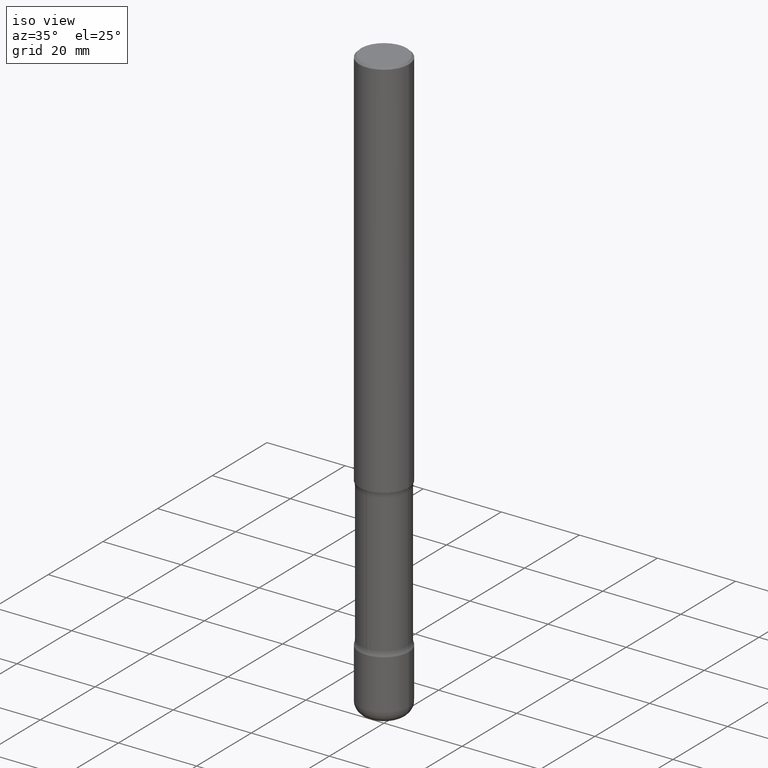
[diagram: clean part render]
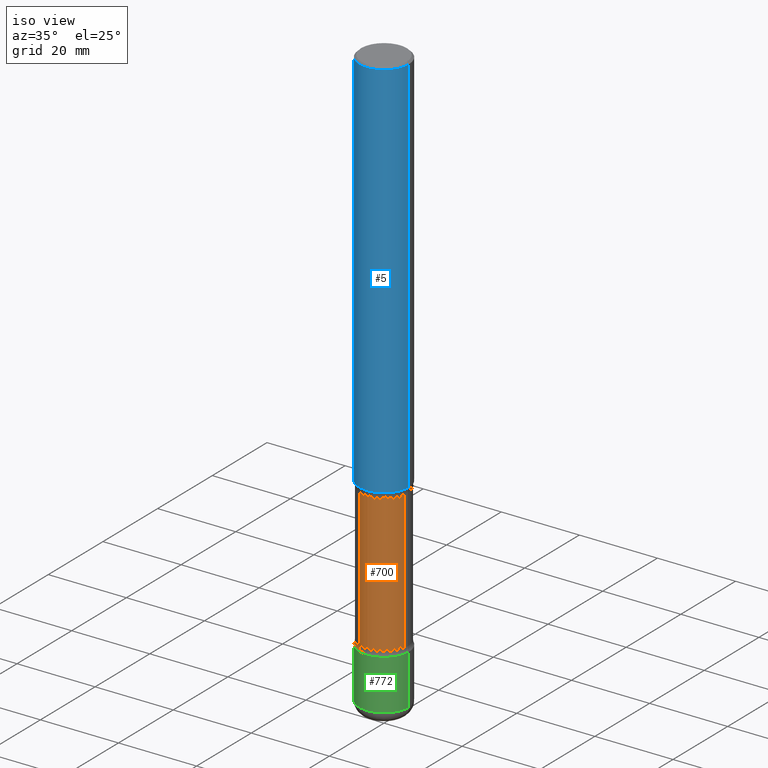
[diagram: same view with three faces highlighted in distinct colors, each labeled with its STEP entity id]
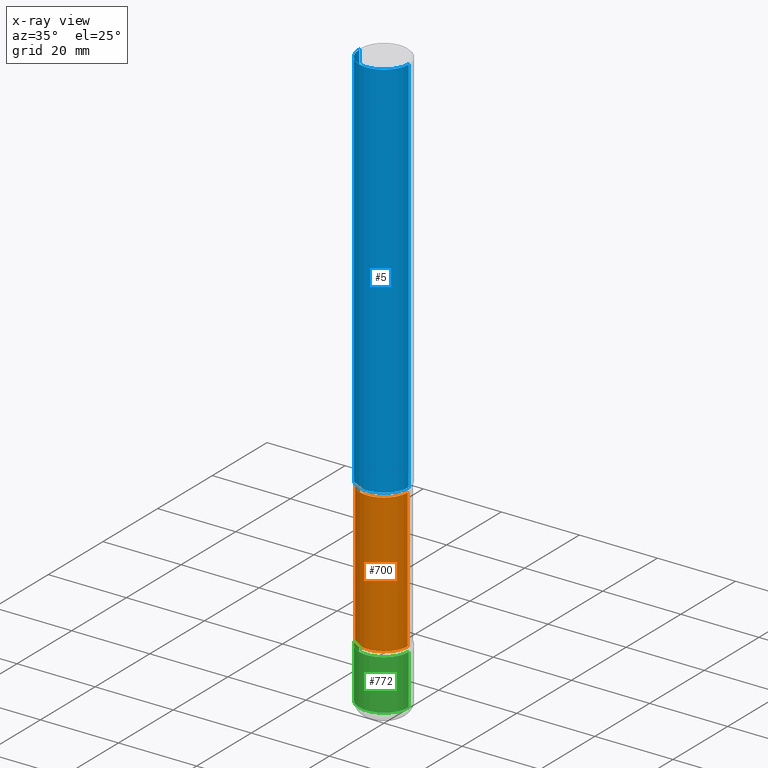
[diagram: x-ray of the same camera — body ghosted, the three highlighted faces saturated]
A machine part, iso view with three faces highlighted in distinct colors.
The next image is the same camera in x-ray (body ghosted, the three faces saturated) — at least one of them is partly hidden behind the body in this view.
Their STEP definitions:

[orange] entity #700 — the highlighted cylindrical surface (edge-blend (fillet) strip) has radius 6.096 mm, axis along (-0, 0, 1).
#52 = VECTOR ( 'NONE', #118, 39.37007874015748143 ) ;
#57 = CYLINDRICAL_SURFACE ( 'NONE', #723, 0.2400000000000001854 ) ;
#68 = VERTEX_POINT ( 'NONE', #100 ) ;
#80 = DIRECTION ( 'NONE',  ( 1.000000000000000000, -6.982962677686260400E-15, 0.000000000000000000 ) ) ;
#87 = DIRECTION ( 'NONE',  ( 1.000000000000000000, -6.982962677686266711E-15, 0.000000000000000000 ) ) ;
#92 = CIRCLE ( 'NONE', #788, 0.2400000000000000466 ) ;
#100 = CARTESIAN_POINT ( 'NONE',  ( 0.2400000000000002687, -2.027157628439431676E-14, -5.326010205144338094 ) ) ;
#111 = LINE ( 'NONE', #667, #156 ) ;
#118 = DIRECTION ( 'NONE',  ( -2.445468806185136877E-29, 3.491481338843145188E-15, 1.000000000000000000 ) ) ;
#125 = DIRECTION ( 'NONE',  ( 1.000000000000000000, -6.982962677686270655E-15, 0.000000000000000000 ) ) ;
#144 = ORIENTED_EDGE ( 'NONE', *, *, #784, .T. ) ;
#156 = VECTOR ( 'NONE', #804, 39.37007874015748143 ) ;
#172 = DIRECTION ( 'NONE',  ( -2.445468806185136597E-29, 3.491481338843145583E-15, 1.000000000000000000 ) ) ;
#199 = ORIENTED_EDGE ( 'NONE', *, *, #688, .T. ) ;
#211 = EDGE_LOOP ( 'NONE', ( #744, #144, #199, #554 ) ) ;
#238 = CARTESIAN_POINT ( 'NONE',  ( 0.2400000000000001854, -1.520540123066189720E-14, -3.875000000000000444 ) ) ;
#264 = VERTEX_POINT ( 'NONE', #566 ) ;
#276 = CARTESIAN_POINT ( 'NONE',  ( -0.2400000000000002687, -1.694035901640351371E-14, -5.326010205144338094 ) ) ;
#337 = VERTEX_POINT ( 'NONE', #767 ) ;
#390 = VERTEX_POINT ( 'NONE', #276 ) ;
#449 = CARTESIAN_POINT ( 'NONE',  ( 9.595994639108339414E-29, -1.370053714254949480E-14, -3.923989794855664126 ) ) ;
#537 = AXIS2_PLACEMENT_3D ( 'NONE', #577, #635, #80 ) ;
#554 = ORIENTED_EDGE ( 'NONE', *, *, #765, .F. ) ;
#557 = FACE_OUTER_BOUND ( 'NONE', #211, .T. ) ;
#560 = LINE ( 'NONE', #238, #52 ) ;
#566 = CARTESIAN_POINT ( 'NONE',  ( 0.2400000000000000466, -1.537644818519419975E-14, -3.923989794855664126 ) ) ;
#577 = CARTESIAN_POINT ( 'NONE',  ( 1.302459181810417859E-28, -1.859566524174961022E-14, -5.326010205144338094 ) ) ;
#620 = EDGE_CURVE ( 'NONE', #390, #337, #111, .T. ) ;
#635 = DIRECTION ( 'NONE',  ( -2.445468806185136597E-29, 3.491481338843145583E-15, 1.000000000000000000 ) ) ;
#667 = CARTESIAN_POINT ( 'NONE',  ( -0.2400000000000001854, -1.182418762219294870E-14, -3.875000000000000444 ) ) ;
#681 = CARTESIAN_POINT ( 'NONE',  ( 9.476191623967405434E-29, -1.352949018801719066E-14, -3.875000000000000444 ) ) ;
#688 = EDGE_CURVE ( 'NONE', #68, #264, #560, .T. ) ;
#692 = DIRECTION ( 'NONE',  ( -2.445468806185136597E-29, 3.491481338843145583E-15, 1.000000000000000000 ) ) ;
#700 = ADVANCED_FACE ( 'NONE', ( #557 ), #57, .T. ) ;
#723 = AXIS2_PLACEMENT_3D ( 'NONE', #681, #172, #125 ) ;
#744 = ORIENTED_EDGE ( 'NONE', *, *, #620, .F. ) ;
#765 = EDGE_CURVE ( 'NONE', #337, #264, #92, .T. ) ;
#767 = CARTESIAN_POINT ( 'NONE',  ( -0.2400000000000000744, -1.187418396267109888E-14, -3.923989794855664126 ) ) ;
#779 = CIRCLE ( 'NONE', #537, 0.2400000000000002687 ) ;
#784 = EDGE_CURVE ( 'NONE', #390, #68, #779, .T. ) ;
#788 = AXIS2_PLACEMENT_3D ( 'NONE', #449, #692, #87 ) ;
#804 = DIRECTION ( 'NONE',  ( -2.445468806185136877E-29, 3.491481338843145188E-15, 1.000000000000000000 ) ) ;

[blue] entity #5 — the highlighted cylindrical surface (edge-blend (fillet) strip) has radius 6.35 mm, axis along (-0, 0, 1).
#5 = ADVANCED_FACE ( 'NONE', ( #46 ), #289, .T. ) ;
#18 = VERTEX_POINT ( 'NONE', #353 ) ;
#25 = CIRCLE ( 'NONE', #297, 0.2500000000000000000 ) ;
#46 = FACE_OUTER_BOUND ( 'NONE', #206, .T. ) ;
#64 = ORIENTED_EDGE ( 'NONE', *, *, #440, .T. ) ;
#101 = CIRCLE ( 'NONE', #515, 0.2499999999999998057 ) ;
#135 = ORIENTED_EDGE ( 'NONE', *, *, #331, .T. ) ;
#137 = ORIENTED_EDGE ( 'NONE', *, *, #192, .F. ) ;
#168 = VECTOR ( 'NONE', #693, 39.37007874015748143 ) ;
#182 = CARTESIAN_POINT ( 'NONE',  ( 4.890937612370287172E-31, -6.982962677686310098E-17, -0.02000000000000005593 ) ) ;
#192 = EDGE_CURVE ( 'NONE', #18, #584, #101, .T. ) ;
#201 = LINE ( 'NONE', #451, #168 ) ;
#206 = EDGE_LOOP ( 'NONE', ( #430, #64, #135, #137 ) ) ;
#209 = EDGE_CURVE ( 'NONE', #325, #18, #674, .T. ) ;
#242 = AXIS2_PLACEMENT_3D ( 'NONE', #413, #533, #294 ) ;
#289 = CYLINDRICAL_SURFACE ( 'NONE', #242, 0.2499999999999998890 ) ;
#294 = DIRECTION ( 'NONE',  ( 1.000000000000000000, -6.982962677686266711E-15, 4.876176775795935793E-29 ) ) ;
#297 = AXIS2_PLACEMENT_3D ( 'NONE', #474, #407, #340 ) ;
#325 = VERTEX_POINT ( 'NONE', #455 ) ;
#331 = EDGE_CURVE ( 'NONE', #588, #584, #201, .T. ) ;
#340 = DIRECTION ( 'NONE',  ( 1.000000000000000000, -6.982962677686270655E-15, 0.000000000000000000 ) ) ;
#353 = CARTESIAN_POINT ( 'NONE',  ( -0.2499999999999998057, 1.675911042644702196E-15, -0.02000000000000005593 ) ) ;
#368 = DIRECTION ( 'NONE',  ( -2.445468806185136597E-29, 3.491481338843145583E-15, 1.000000000000000000 ) ) ;
#407 = DIRECTION ( 'NONE',  ( -2.445468806185136597E-29, 3.491481338843145583E-15, 1.000000000000000000 ) ) ;
#413 = CARTESIAN_POINT ( 'NONE',  ( 0.000000000000000000, 0.000000000000000000, 0.000000000000000000 ) ) ;
#430 = ORIENTED_EDGE ( 'NONE', *, *, #209, .F. ) ;
#440 = EDGE_CURVE ( 'NONE', #325, #588, #25, .T. ) ;
#451 = CARTESIAN_POINT ( 'NONE',  ( 0.2499999999999998890, -1.745740669421565889E-15, 1.219044193948983388E-29 ) ) ;
#455 = CARTESIAN_POINT ( 'NONE',  ( -0.2500000000000000000, -5.023303067996774148E-15, -3.875000000000000444 ) ) ;
#474 = CARTESIAN_POINT ( 'NONE',  ( 9.476191623967405434E-29, -1.352949018801719066E-14, -3.875000000000000444 ) ) ;
#515 = AXIS2_PLACEMENT_3D ( 'NONE', #182, #368, #796 ) ;
#533 = DIRECTION ( 'NONE',  ( -2.445468806185136597E-29, 3.491481338843145583E-15, 1.000000000000000000 ) ) ;
#584 = VERTEX_POINT ( 'NONE', #603 ) ;
#588 = VERTEX_POINT ( 'NONE', #738 ) ;
#603 = CARTESIAN_POINT ( 'NONE',  ( 0.2499999999999998057, -1.784954126219744611E-15, -0.02000000000000005593 ) ) ;
#674 = LINE ( 'NONE', #678, #695 ) ;
#678 = CARTESIAN_POINT ( 'NONE',  ( -0.2499999999999998890, 1.776356839400249676E-15, -1.229733772563726025E-29 ) ) ;
#693 = DIRECTION ( 'NONE',  ( -2.445468806185136877E-29, 3.491481338843145188E-15, 1.000000000000000000 ) ) ;
#695 = VECTOR ( 'NONE', #746, 39.37007874015748143 ) ;
#738 = CARTESIAN_POINT ( 'NONE',  ( 0.2500000000000000000, -1.527523085743875734E-14, -3.875000000000000444 ) ) ;
#746 = DIRECTION ( 'NONE',  ( -2.445468806185136877E-29, 3.491481338843145188E-15, 1.000000000000000000 ) ) ;
#796 = DIRECTION ( 'NONE',  ( 1.000000000000000000, -6.982962677686266711E-15, 0.000000000000000000 ) ) ;

[green] entity #772 — the highlighted cylindrical surface (edge-blend (fillet) strip) has radius 6.35 mm, axis along (-0, 0, 1).
#7 = CARTESIAN_POINT ( 'NONE',  ( 0.2499999999999996947, -2.227565094181926275E-14, -5.880000000000000782 ) ) ;
#23 = EDGE_LOOP ( 'NONE', ( #249, #627, #563, #241 ) ) ;
#24 = CIRCLE ( 'NONE', #543, 0.2500000000000000000 ) ;
#56 = VERTEX_POINT ( 'NONE', #162 ) ;
#65 = DIRECTION ( 'NONE',  ( 1.000000000000000000, -6.982962677686262766E-15, 0.000000000000000000 ) ) ;
#106 = EDGE_CURVE ( 'NONE', #732, #56, #771, .T. ) ;
#159 = EDGE_CURVE ( 'NONE', #675, #56, #24, .T. ) ;
#160 = DIRECTION ( 'NONE',  ( -2.445468806185136877E-29, 3.491481338843145188E-15, 1.000000000000000000 ) ) ;
#162 = CARTESIAN_POINT ( 'NONE',  ( 0.2500000000000000000, -2.051245286570347630E-14, -5.375000000000000888 ) ) ;
#231 = CIRCLE ( 'NONE', #505, 0.2500000000000000000 ) ;
#241 = ORIENTED_EDGE ( 'NONE', *, *, #159, .F. ) ;
#247 = CARTESIAN_POINT ( 'NONE',  ( 1.437935658036860328E-28, -2.052991027239769923E-14, -5.880000000000000782 ) ) ;
#249 = ORIENTED_EDGE ( 'NONE', *, *, #662, .F. ) ;
#255 = CARTESIAN_POINT ( 'NONE',  ( 0.000000000000000000, 0.000000000000000000, 0.000000000000000000 ) ) ;
#261 = CYLINDRICAL_SURFACE ( 'NONE', #793, 0.2500000000000000000 ) ;
#274 = VECTOR ( 'NONE', #436, 39.37007874015748143 ) ;
#302 = DIRECTION ( 'NONE',  ( -2.445468806185136597E-29, 3.491481338843145583E-15, 1.000000000000000000 ) ) ;
#394 = VERTEX_POINT ( 'NONE', #522 ) ;
#436 = DIRECTION ( 'NONE',  ( -2.445468806185136877E-29, 3.491481338843145188E-15, 1.000000000000000000 ) ) ;
#500 = DIRECTION ( 'NONE',  ( 1.000000000000000000, -6.982962677686262766E-15, 0.000000000000000000 ) ) ;
#505 = AXIS2_PLACEMENT_3D ( 'NONE', #247, #302, #65 ) ;
#522 = CARTESIAN_POINT ( 'NONE',  ( -0.2499999999999996947, -1.875355343299744876E-14, -5.880000000000000782 ) ) ;
#543 = AXIS2_PLACEMENT_3D ( 'NONE', #549, #800, #500 ) ;
#549 = CARTESIAN_POINT ( 'NONE',  ( 1.314439483324511145E-28, -1.876671219628190963E-14, -5.375000000000000888 ) ) ;
#563 = ORIENTED_EDGE ( 'NONE', *, *, #106, .T. ) ;
#611 = LINE ( 'NONE', #794, #274 ) ;
#614 = CARTESIAN_POINT ( 'NONE',  ( -0.2500000000000000000, -1.787195439493955396E-14, -5.375000000000000888 ) ) ;
#627 = ORIENTED_EDGE ( 'NONE', *, *, #664, .T. ) ;
#662 = EDGE_CURVE ( 'NONE', #394, #675, #611, .T. ) ;
#664 = EDGE_CURVE ( 'NONE', #394, #732, #231, .T. ) ;
#675 = VERTEX_POINT ( 'NONE', #614 ) ;
#689 = FACE_OUTER_BOUND ( 'NONE', #23, .T. ) ;
#712 = CARTESIAN_POINT ( 'NONE',  ( 0.2500000000000000000, -1.745740669421566678E-15, 1.219044193948983948E-29 ) ) ;
#732 = VERTEX_POINT ( 'NONE', #7 ) ;
#747 = VECTOR ( 'NONE', #160, 39.37007874015748143 ) ;
#752 = DIRECTION ( 'NONE',  ( -2.445468806185136597E-29, 3.491481338843145583E-15, 1.000000000000000000 ) ) ;
#755 = DIRECTION ( 'NONE',  ( 1.000000000000000000, -6.982962677686266711E-15, 4.876176775795935793E-29 ) ) ;
#771 = LINE ( 'NONE', #712, #747 ) ;
#772 = ADVANCED_FACE ( 'NONE', ( #689 ), #261, .T. ) ;
#793 = AXIS2_PLACEMENT_3D ( 'NONE', #255, #752, #755 ) ;
#794 = CARTESIAN_POINT ( 'NONE',  ( -0.2500000000000000000, 1.776356839400250465E-15, -1.229733772563726445E-29 ) ) ;
#800 = DIRECTION ( 'NONE',  ( -2.445468806185136597E-29, 3.491481338843145583E-15, 1.000000000000000000 ) ) ;